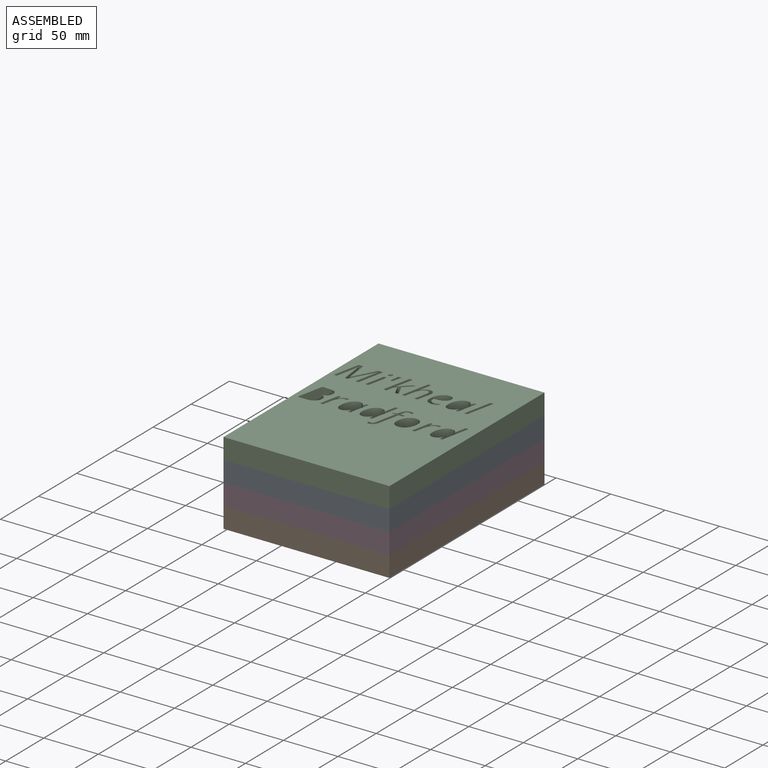
[diagram: assembled view]
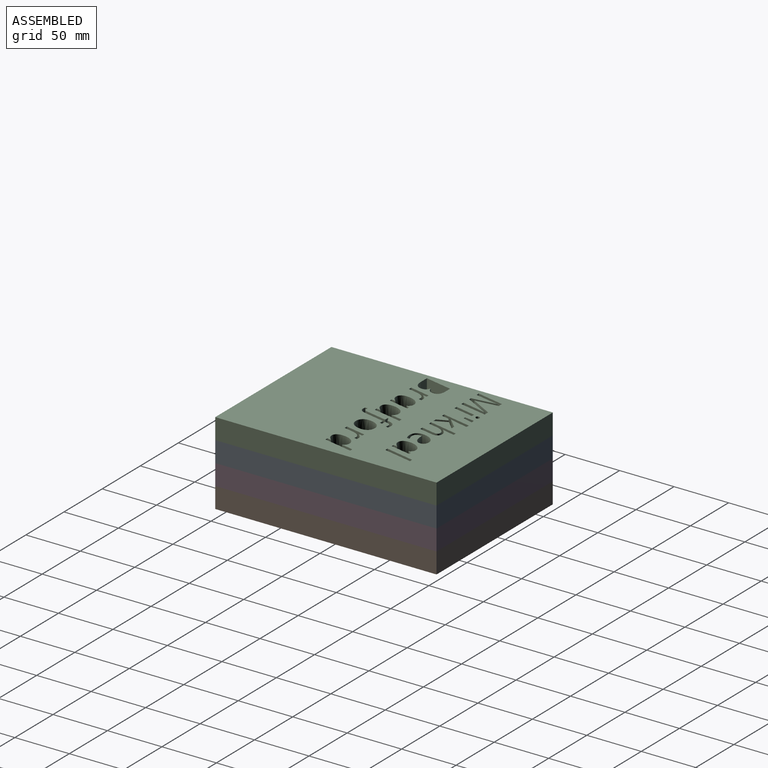
[diagram: assembled view, second angle]
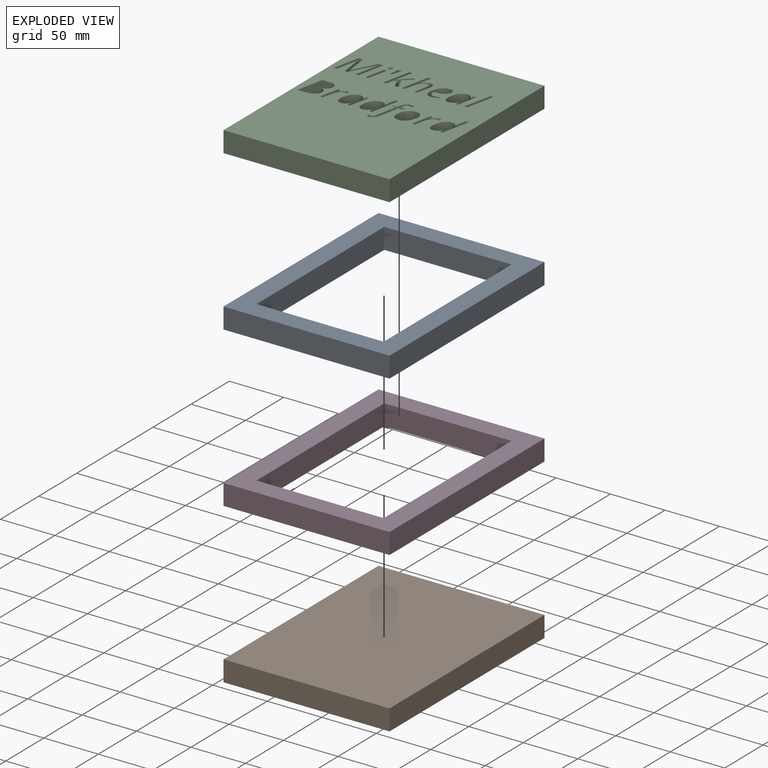
[diagram: exploded view]
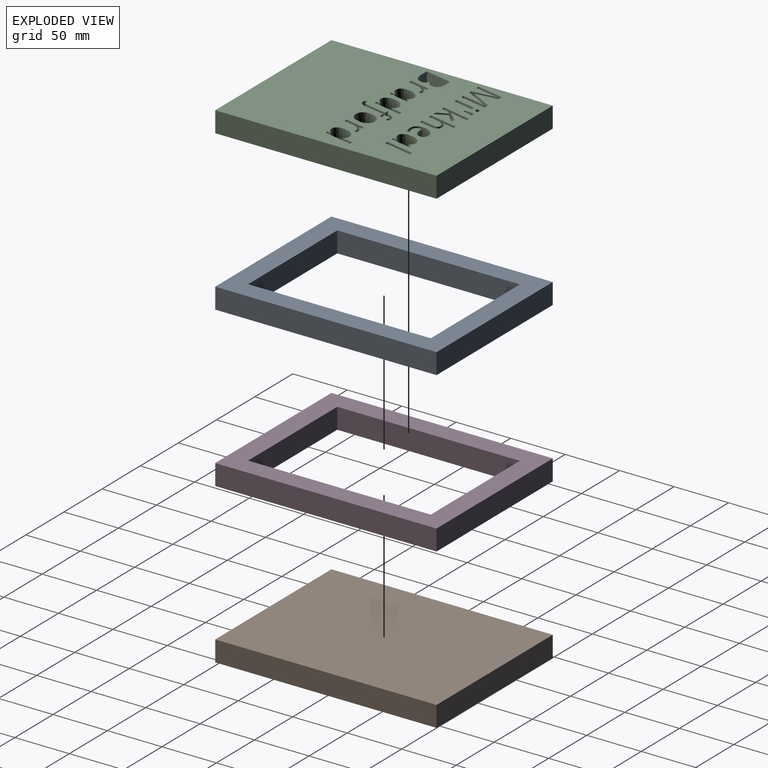
[diagram: exploded view, second angle]
ASSEMBLY  parts=4 mates=3
PART A: 10 faces, bbox 152.4x203.2x19.1 mm
  f0: plane 152.4x19.05mm, normal (0,1,0), area 2903.2mm2, adj f1,f3,f4,f5
  f1: plane 203.2x19.05mm, normal (-1,0,0), area 3871mm2, adj f0,f2,f4,f5
  f2: plane 152.4x19.05mm, normal (0,-1,0), area 2903.2mm2, adj f1,f3,f4,f5
  f3: plane 203.2x19.05mm, normal (1,0,0), area 3871mm2, adj f0,f2,f4,f5
  f4: plane 203.2x152.4mm, normal (0,0,1), area 11380.6mm2, adj f0,f1,f2,f3,f6,f7,f8,f9
  f5: plane 203.2x152.4mm, normal (0,0,-1), area 11380.6mm2, adj f0,f1,f2,f3,f6,f7,f8,f9
  f6: plane 167.64x19.05mm, normal (1,0,0), area 3193.5mm2, adj f4,f5,f7,f9
  f7: plane 116.84x19.05mm, normal (0,1,0), area 2225.8mm2, adj f4,f5,f6,f8
  f8: plane 167.64x19.05mm, normal (-1,0,0), area 3193.5mm2, adj f4,f5,f7,f9
  f9: plane 116.84x19.05mm, normal (0,-1,0), area 2225.8mm2, adj f4,f5,f6,f8
PART B: 6 faces, bbox 152.4x203.2x19.1 mm
  f0: plane 152.4x19.05mm, normal (0,1,0), area 2903.2mm2, adj f1,f3,f4,f5
  f1: plane 203.2x19.05mm, normal (-1,0,0), area 3871mm2, adj f0,f2,f4,f5
  f2: plane 152.4x19.05mm, normal (0,-1,0), area 2903.2mm2, adj f1,f3,f4,f5
  f3: plane 203.2x19.05mm, normal (1,0,0), area 3871mm2, adj f0,f2,f4,f5
  f4: plane 203.2x152.4mm, normal (0,0,1), area 30967.7mm2, adj f0,f1,f2,f3
  f5: plane 203.2x152.4mm, normal (0,0,-1), area 30967.7mm2, adj f0,f1,f2,f3
PART C: 236 faces, bbox 152.4x203.2x19.1 mm
  f0: plane 152.4x19.05mm, normal (0,1,0), area 2903.2mm2, adj f1,f233,f234,f235
  f1: plane 203.2x19.05mm, normal (-1,0,0), area 3871mm2, adj f0,f2,f234,f235
  f2: plane 152.4x19.05mm, normal (0,-1,0), area 2903.2mm2, adj f1,f233,f234,f235
  f3: extruded ~19.05x4.68mm, area 97mm2, adj f4,f216,f234,f235
  f4: extruded ~19.05x2.8mm, area 56.6mm2, adj f3,f5,f234,f235
  f5: extruded ~19.05x2.43mm, area 59.8mm2, adj f4,f6,f234,f235
  f6: plane 19.05x0.19mm, normal (0,-1,0), area 3.6mm2, adj f5,f7,f234,f235
  f7: plane 19.05x2.94mm, normal (0.93,-0.36,0), area 60mm2, adj f6,f8,f234,f235
  f8: plane 19.05x2.17mm, normal (0,-1,0), area 41.3mm2, adj f7,f9,f234,f235
  f9: plane 19.05x18.73mm, normal (-0.98,0.21,0), area 364.7mm2, adj f8,f10,f234,f235
  f10: plane 19.05x2.27mm, normal (0,1,0), area 43.3mm2, adj f9,f11,f234,f235
  f11: plane 19.05x3.57mm, normal (0.99,-0.12,0), area 68.5mm2, adj f10,f12,f234,f235
  f12: plane 19.05x0.14mm, normal (0,1,0), area 2.6mm2, adj f11,f13,f234,f235
  f13: extruded ~19.05x6.45mm, area 148.8mm2, adj f12,f14,f234,f235
  f14: extruded ~19.05x3.72mm, area 80.8mm2, adj f13,f15,f234,f235
  f15: extruded ~19.05x4.63mm, area 93.7mm2, adj f14,f16,f234,f235
  f16: extruded ~19.05x6.59mm, area 128.5mm2, adj f15,f216,f234,f235
  f17: extruded ~19.05x1.96mm, area 38.3mm2, adj f18,f217,f234,f235
  f18: extruded ~19.05x2.05mm, area 39.4mm2, adj f17,f19,f234,f235
  f19: plane 19.05x2.56mm, normal (-0.97,0.23,0), area 50.2mm2, adj f18,f20,f234,f235
  f20: extruded ~19.05x1.8mm, area 34.6mm2, adj f19,f21,f234,f235
  f21: extruded ~19.05x2.91mm, area 59.9mm2, adj f20,f22,f234,f235
  f22: extruded ~19.05x2.85mm, area 71.1mm2, adj f21,f23,f234,f235
  f23: extruded ~19.05x4.04mm, area 82.4mm2, adj f22,f24,f234,f235
  f24: plane 19.05x8.58mm, normal (-0.98,0.21,0), area 167.1mm2, adj f23,f25,f234,f235
  f25: plane 19.05x2.87mm, normal (0,1,0), area 54.7mm2, adj f24,f26,f234,f235
  f26: plane 19.05x18.73mm, normal (0.98,-0.21,0), area 364.8mm2, adj f25,f27,f234,f235
  f27: plane 19.05x2.37mm, normal (0,-1,0), area 45.2mm2, adj f26,f28,f234,f235
  f28: plane 19.05x3.47mm, normal (-0.99,0.11,0), area 66.4mm2, adj f27,f29,f234,f235
  f29: plane 19.05x0.18mm, normal (0,-1,0), area 3.3mm2, adj f28,f30,f234,f235
  f30: extruded ~19.05x2.33mm, area 59mm2, adj f29,f217,f234,f235
  f31: extruded ~19.05x4.68mm, area 97mm2, adj f32,f218,f234,f235
  f32: extruded ~19.05x2.8mm, area 56.6mm2, adj f31,f33,f234,f235
  f33: extruded ~19.05x2.43mm, area 59.8mm2, adj f32,f34,f234,f235
  f34: plane 19.05x0.19mm, normal (0,-1,0), area 3.6mm2, adj f33,f35,f234,f235
  f35: plane 19.05x2.94mm, normal (0.93,-0.36,0), area 60mm2, adj f34,f36,f234,f235
  f36: plane 19.05x2.17mm, normal (0,-1,0), area 41.3mm2, adj f35,f37,f234,f235
  f37: plane 19.05x18.73mm, normal (-0.98,0.21,0), area 364.7mm2, adj f36,f38,f234,f235
  f38: plane 19.05x2.27mm, normal (0,1,0), area 43.3mm2, adj f37,f39,f234,f235
  f39: plane 19.05x3.57mm, normal (0.99,-0.12,0), area 68.5mm2, adj f38,f40,f234,f235
  f40: plane 19.05x0.14mm, normal (0,1,0), area 2.6mm2, adj f39,f41,f234,f235
  f41: extruded ~19.05x6.45mm, area 148.8mm2, adj f40,f42,f234,f235
  f42: extruded ~19.05x3.72mm, area 80.8mm2, adj f41,f43,f234,f235
  f43: extruded ~19.05x4.63mm, area 93.7mm2, adj f42,f44,f234,f235
  f44: extruded ~19.05x6.59mm, area 128.5mm2, adj f43,f218,f234,f235
  f45: extruded ~19.05x3.64mm, area 77.2mm2, adj f46,f219,f234,f235
  f46: extruded ~19.05x2.14mm, area 41.5mm2, adj f45,f47,f234,f235
  f47: plane 19.05x2.41mm, normal (1,0,0), area 45.9mm2, adj f46,f48,f234,f235
  f48: extruded ~19.05x1.91mm, area 37.3mm2, adj f47,f49,f234,f235
  f49: extruded ~19.05x2mm, area 45.1mm2, adj f48,f50,f234,f235
  f50: extruded ~19.05x3.03mm, area 61.8mm2, adj f49,f51,f234,f235
  f51: plane 19.05x18.49mm, normal (0.98,-0.21,0), area 359.8mm2, adj f50,f52,f234,f235
  f52: plane 19.05x3.3mm, normal (0,1,0), area 62.8mm2, adj f51,f53,f234,f235
  f53: plane 19.05x1.15mm, normal (0.98,-0.19,0), area 22.3mm2, adj f52,f54,f234,f235
  f54: plane 19.05x3.52mm, normal (0.3,-0.95,0), area 70.4mm2, adj f53,f55,f234,f235
  f55: plane 19.05x1.71mm, normal (0.97,-0.22,0), area 33.4mm2, adj f54,f56,f234,f235
  f56: extruded ~19.05x4.83mm, area 102.1mm2, adj f55,f57,f234,f235
  f57: extruded ~19.05x4.13mm, area 85.3mm2, adj f56,f58,f234,f235
  f58: extruded ~19.05x1.67mm, area 32.1mm2, adj f57,f59,f234,f235
  f59: extruded ~19.05x1.54mm, area 30.5mm2, adj f58,f60,f234,f235
  f60: plane 19.05x2.2mm, normal (-0.95,0.32,0), area 44.2mm2, adj f59,f61,f234,f235
  f61: extruded ~19.05x2.34mm, area 45.8mm2, adj f60,f62,f234,f235
  f62: extruded ~19.05x2.28mm, area 47.6mm2, adj f61,f63,f234,f235
  f63: extruded ~19.05x3.03mm, area 63.4mm2, adj f62,f64,f234,f235
  f64: plane 19.05x1.85mm, normal (-0.97,0.22,0), area 36.1mm2, adj f63,f65,f234,f235
  f65: plane 19.05x4.06mm, normal (0,-1,0), area 77.4mm2, adj f64,f66,f234,f235
  f66: plane 19.05x2.17mm, normal (-0.98,0.19,0), area 42.1mm2, adj f65,f67,f234,f235
  f67: plane 19.05x4.05mm, normal (0,1,0), area 77.1mm2, adj f66,f68,f234,f235
  f68: plane 19.05x18.76mm, normal (-0.98,0.21,0), area 365.2mm2, adj f67,f219,f234,f235
  f69: extruded ~19.05x4.69mm, area 95.7mm2, adj f70,f220,f234,f235
  f70: extruded ~19.05x5.13mm, area 107.3mm2, adj f69,f71,f234,f235
  f71: extruded ~19.05x5.29mm, area 109.8mm2, adj f70,f72,f234,f235
  f72: extruded ~19.05x6.06mm, area 118.7mm2, adj f71,f73,f234,f235
  f73: extruded ~19.05x4.41mm, area 106.5mm2, adj f72,f74,f234,f235
  f74: extruded ~19.05x4.75mm, area 96.9mm2, adj f73,f75,f234,f235
  f75: extruded ~19.05x5.15mm, area 107.7mm2, adj f74,f76,f234,f235
  f76: extruded ~19.05x5.28mm, area 109.5mm2, adj f75,f77,f234,f235
  f77: extruded ~19.05x6.11mm, area 119.6mm2, adj f76,f220,f234,f235
  f78: extruded ~19.05x4.69mm, area 96.6mm2, adj f79,f221,f234,f235
  f79: extruded ~19.05x4.8mm, area 117.5mm2, adj f78,f80,f234,f235
  f80: plane 19.05x0.17mm, normal (0,-1,0), area 3.2mm2, adj f79,f81,f234,f235
  f81: extruded ~19.05x4.68mm, area 90.4mm2, adj f80,f82,f234,f235
  f82: plane 19.05x6.12mm, normal (0.98,-0.21,0), area 119.3mm2, adj f81,f83,f234,f235
  f83: plane 19.05x2.83mm, normal (0,-1,0), area 54mm2, adj f82,f84,f234,f235
  f84: plane 26.59x19.05mm, normal (-0.98,0.21,0), area 517.8mm2, adj f83,f85,f234,f235
  f85: plane 19.05x2.37mm, normal (0,1,0), area 45.2mm2, adj f84,f86,f234,f235
  f86: plane 19.05x3.57mm, normal (0.99,-0.11,0), area 68.4mm2, adj f85,f87,f234,f235
  f87: plane 19.05x0.14mm, normal (0,1,0), area 2.6mm2, adj f86,f88,f234,f235
  f88: extruded ~19.05x3.23mm, area 84.7mm2, adj f87,f89,f234,f235
  f89: extruded ~19.05x3.11mm, area 62.4mm2, adj f88,f90,f234,f235
  f90: extruded ~19.05x3.71mm, area 80.4mm2, adj f89,f91,f234,f235
  f91: extruded ~19.05x4.65mm, area 93.9mm2, adj f90,f92,f234,f235
  f92: extruded ~19.05x6.7mm, area 130.5mm2, adj f91,f221,f234,f235
  f93: extruded ~19.05x1.96mm, area 38.3mm2, adj f94,f222,f234,f235
  f94: extruded ~19.05x2.05mm, area 39.4mm2, adj f93,f95,f234,f235
  f95: plane 19.05x2.56mm, normal (-0.97,0.23,0), area 50.2mm2, adj f94,f96,f234,f235
  f96: extruded ~19.05x1.8mm, area 34.6mm2, adj f95,f97,f234,f235
  f97: extruded ~19.05x2.91mm, area 59.9mm2, adj f96,f98,f234,f235
  f98: extruded ~19.05x2.85mm, area 71.1mm2, adj f97,f99,f234,f235
  f99: extruded ~19.05x4.04mm, area 82.4mm2, adj f98,f100,f234,f235
  f100: plane 19.05x8.58mm, normal (-0.98,0.21,0), area 167.1mm2, adj f99,f101,f234,f235
  f101: plane 19.05x2.87mm, normal (0,1,0), area 54.7mm2, adj f100,f102,f234,f235
  f102: plane 19.05x18.73mm, normal (0.98,-0.21,0), area 364.8mm2, adj f101,f103,f234,f235
  f103: plane 19.05x2.37mm, normal (0,-1,0), area 45.2mm2, adj f102,f104,f234,f235
  f104: plane 19.05x3.47mm, normal (-0.99,0.11,0), area 66.4mm2, adj f103,f105,f234,f235
  f105: plane 19.05x0.18mm, normal (0,-1,0), area 3.3mm2, adj f104,f106,f234,f235
  f106: extruded ~19.05x2.33mm, area 59mm2, adj f105,f222,f234,f235
  f107: extruded ~19.05x4.69mm, area 96.6mm2, adj f108,f223,f234,f235
  f108: extruded ~19.05x4.8mm, area 117.5mm2, adj f107,f109,f234,f235
  f109: plane 19.05x0.17mm, normal (0,-1,0), area 3.2mm2, adj f108,f110,f234,f235
  f110: extruded ~19.05x4.68mm, area 90.4mm2, adj f109,f111,f234,f235
  f111: plane 19.05x6.12mm, normal (0.98,-0.21,0), area 119.3mm2, adj f110,f112,f234,f235
  f112: plane 19.05x2.83mm, normal (0,-1,0), area 54mm2, adj f111,f113,f234,f235
  f113: plane 26.59x19.05mm, normal (-0.98,0.21,0), area 517.8mm2, adj f112,f114,f234,f235
  f114: plane 19.05x2.37mm, normal (0,1,0), area 45.2mm2, adj f113,f115,f234,f235
  f115: plane 19.05x3.57mm, normal (0.99,-0.11,0), area 68.4mm2, adj f114,f116,f234,f235
  f116: plane 19.05x0.14mm, normal (0,1,0), area 2.6mm2, adj f115,f117,f234,f235
  f117: extruded ~19.05x3.23mm, area 84.7mm2, adj f116,f118,f234,f235
  f118: extruded ~19.05x3.11mm, area 62.4mm2, adj f117,f119,f234,f235
  f119: extruded ~19.05x3.71mm, area 80.4mm2, adj f118,f120,f234,f235
  f120: extruded ~19.05x4.65mm, area 93.9mm2, adj f119,f121,f234,f235
  f121: extruded ~19.05x6.7mm, area 130.5mm2, adj f120,f223,f234,f235
  f122: plane 19.05x6.41mm, normal (0,-1,0), area 122.1mm2, adj f123,f224,f234,f235
  f123: extruded ~19.05x7.38mm, area 203.5mm2, adj f122,f124,f234,f235
  f124: extruded ~19.05x4.07mm, area 84.5mm2, adj f123,f125,f234,f235
  f125: extruded ~19.05x4.19mm, area 91.4mm2, adj f124,f126,f234,f235
  f126: plane 19.05x0.17mm, normal (-1,0,0), area 3.2mm2, adj f125,f127,f234,f235
  f127: extruded ~19.05x3.02mm, area 69mm2, adj f126,f128,f234,f235
  f128: extruded ~19.05x3.22mm, area 65.7mm2, adj f127,f129,f234,f235
  f129: extruded ~19.05x5.68mm, area 123.5mm2, adj f128,f130,f234,f235
  f130: extruded ~19.05x6.95mm, area 140.8mm2, adj f129,f131,f234,f235
  f131: plane 19.05x7.91mm, normal (0,1,0), area 150.7mm2, adj f130,f224,f234,f235
  f132: plane 26.59x19.05mm, normal (-0.98,0.21,0), area 517.9mm2, adj f133,f225,f234,f235
  f133: plane 19.05x2.87mm, normal (0,1,0), area 54.7mm2, adj f132,f134,f234,f235
  f134: plane 26.59x19.05mm, normal (0.98,-0.21,0), area 517.9mm2, adj f133,f225,f234,f235
  f135: extruded ~19.05x2.71mm, area 52.1mm2, adj f136,f226,f234,f235
  f136: extruded ~19.05x4.94mm, area 103.5mm2, adj f135,f137,f234,f235
  f137: extruded ~19.05x5.16mm, area 106.8mm2, adj f136,f138,f234,f235
  f138: extruded ~19.05x6.16mm, area 120.7mm2, adj f137,f139,f234,f235
  f139: extruded ~19.05x4.59mm, area 109.7mm2, adj f138,f140,f234,f235
  f140: extruded ~19.05x4.63mm, area 95.4mm2, adj f139,f141,f234,f235
  f141: extruded ~19.05x3.93mm, area 79.6mm2, adj f140,f142,f234,f235
  f142: extruded ~19.05x3.17mm, area 67.6mm2, adj f141,f143,f234,f235
  f143: extruded ~19.05x4.83mm, area 111.9mm2, adj f142,f144,f234,f235
  f144: extruded ~19.05x8.12mm, area 160.2mm2, adj f143,f145,f234,f235
  f145: plane 19.05x0.56mm, normal (0,1,0), area 10.7mm2, adj f144,f146,f234,f235
  f146: plane 19.05x1.37mm, normal (-1,0.05,0), area 26.1mm2, adj f145,f147,f234,f235
  f147: extruded ~19.05x3.49mm, area 70.9mm2, adj f146,f148,f234,f235
  f148: extruded ~19.05x3.25mm, area 68.7mm2, adj f147,f149,f234,f235
  f149: extruded ~19.05x2.21mm, area 42.7mm2, adj f148,f150,f234,f235
  f150: extruded ~19.05x2.83mm, area 58.1mm2, adj f149,f151,f234,f235
  f151: plane 19.05x2.5mm, normal (-1,0,0), area 47.6mm2, adj f150,f226,f234,f235
  f152: plane 19.05x2.87mm, normal (0,1,0), area 54.7mm2, adj f153,f227,f234,f235
  f153: plane 19.05x11.83mm, normal (0.98,-0.21,0), area 230.4mm2, adj f152,f154,f234,f235
  f154: extruded ~19.05x2.3mm, area 44.3mm2, adj f153,f155,f234,f235
  f155: extruded ~19.05x2.53mm, area 77.9mm2, adj f154,f156,f234,f235
  f156: extruded ~19.05x2.97mm, area 60.7mm2, adj f155,f157,f234,f235
  f157: extruded ~19.05x2.93mm, area 74.5mm2, adj f156,f158,f234,f235
  f158: extruded ~19.05x4.64mm, area 94.3mm2, adj f157,f159,f234,f235
  f159: plane 19.05x8.08mm, normal (-0.98,0.21,0), area 157.4mm2, adj f158,f160,f234,f235
  f160: plane 19.05x2.87mm, normal (0,1,0), area 54.7mm2, adj f159,f161,f234,f235
  f161: plane 26.59x19.05mm, normal (0.98,-0.21,0), area 517.8mm2, adj f160,f162,f234,f235
  f162: plane 19.05x2.87mm, normal (0,-1,0), area 54.7mm2, adj f161,f163,f234,f235
  f163: extruded ~19.05x2.72mm, area 53mm2, adj f162,f164,f234,f235
  f164: extruded ~19.05x2.67mm, area 52.1mm2, adj f163,f165,f234,f235
  f165: extruded ~19.05x2.85mm, area 55.6mm2, adj f164,f166,f234,f235
  f166: extruded ~19.05x3.23mm, area 63.4mm2, adj f165,f167,f234,f235
  f167: plane 19.05x0.19mm, normal (0,-1,0), area 3.6mm2, adj f166,f168,f234,f235
  f168: extruded ~19.05x3.17mm, area 83.7mm2, adj f167,f169,f234,f235
  f169: extruded ~19.05x3.27mm, area 65.4mm2, adj f168,f170,f234,f235
  f170: extruded ~19.05x3.46mm, area 71.8mm2, adj f169,f171,f234,f235
  f171: extruded ~19.05x3.48mm, area 72.2mm2, adj f170,f172,f234,f235
  f172: extruded ~19.05x2.84mm, area 54.7mm2, adj f171,f227,f234,f235
  f173: plane 19.05x0.07mm, normal (0,-1,0), area 1.2mm2, adj f174,f228,f234,f235
  f174: plane 19.05x9.17mm, normal (0.71,-0.7,0), area 244.7mm2, adj f173,f175,f234,f235
  f175: plane 19.05x3.43mm, normal (0,-1,0), area 65.4mm2, adj f174,f176,f234,f235
  f176: plane 19.05x8.01mm, normal (-0.71,0.71,0), area 215.3mm2, adj f175,f177,f234,f235
  f177: plane 19.05x10.75mm, normal (-0.91,-0.42,0), area 226.1mm2, adj f176,f178,f234,f235
  f178: plane 19.05x3.19mm, normal (0,1,0), area 60.8mm2, adj f177,f179,f234,f235
  f179: plane 19.05x8.96mm, normal (0.91,0.41,0), area 187mm2, adj f178,f180,f234,f235
  f180: plane 19.05x2.6mm, normal (-0.63,0.78,0), area 63.7mm2, adj f179,f181,f234,f235
  f181: plane 19.05x6.85mm, normal (-0.98,0.2,0), area 133.2mm2, adj f180,f182,f234,f235
  f182: plane 19.05x2.9mm, normal (0,1,0), area 55.3mm2, adj f181,f183,f234,f235
  f183: plane 26.59x19.05mm, normal (0.98,-0.21,0), area 517.8mm2, adj f182,f184,f234,f235
  f184: plane 19.05x2.91mm, normal (0,-1,0), area 55.4mm2, adj f183,f185,f234,f235
  f185: extruded ~19.05x10.29mm, area 200.4mm2, adj f184,f228,f234,f235
  f186: plane 19.05x3.22mm, normal (0,-1,0), area 61.2mm2, adj f187,f229,f234,f235
  f187: plane 19.05x9.02mm, normal (-0.96,0.28,0), area 178.9mm2, adj f186,f188,f234,f235
  f188: plane 19.05x1.83mm, normal (0,1,0), area 34.9mm2, adj f187,f229,f234,f235
  f189: extruded ~19.05x1.19mm, area 24.9mm2, adj f190,f230,f234,f235
  f190: extruded ~19.05x1.56mm, area 32.3mm2, adj f189,f191,f234,f235
  f191: extruded ~19.05x1.42mm, area 30.3mm2, adj f190,f192,f234,f235
  f192: extruded ~19.05x1.54mm, area 47mm2, adj f191,f193,f234,f235
  f193: extruded ~19.05x1.59mm, area 32.9mm2, adj f192,f194,f234,f235
  f194: extruded ~19.05x1.33mm, area 29.1mm2, adj f193,f230,f234,f235
  f195: plane 19.05x18.73mm, normal (-0.98,0.21,0), area 364.8mm2, adj f196,f231,f234,f235
  f196: plane 19.05x2.87mm, normal (0,1,0), area 54.7mm2, adj f195,f197,f234,f235
  f197: plane 19.05x18.73mm, normal (0.98,-0.21,0), area 364.8mm2, adj f196,f231,f234,f235
  f198: plane 19.05x2.24mm, normal (0,1,0), area 42.6mm2, adj f199,f232,f234,f235
  f199: plane 22.14x19.05mm, normal (0.99,0.13,0), area 425.3mm2, adj f198,f200,f234,f235
  f200: plane 19.05x0.14mm, normal (0,1,0), area 2.6mm2, adj f199,f201,f234,f235
  f201: extruded ~19.05x3.37mm, area 64.9mm2, adj f200,f202,f234,f235
  f202: extruded ~19.05x3.41mm, area 66.1mm2, adj f201,f203,f234,f235
  f203: plane 19.05x15.36mm, normal (-0.98,0.21,0), area 299mm2, adj f202,f204,f234,f235
  f204: plane 19.05x2.77mm, normal (0,1,0), area 52.7mm2, adj f203,f205,f234,f235
  f205: plane 24.98x19.05mm, normal (0.98,-0.21,0), area 486.4mm2, adj f204,f206,f234,f235
  f206: plane 19.05x4.17mm, normal (0,-1,0), area 79.5mm2, adj f205,f207,f234,f235
  f207: plane 20.57x19.05mm, normal (-0.99,-0.12,0), area 394.9mm2, adj f206,f208,f234,f235
  f208: plane 19.05x0.15mm, normal (0,-1,0), area 2.9mm2, adj f207,f209,f234,f235
  f209: plane 20.57x19.05mm, normal (0.88,-0.48,0), area 446.8mm2, adj f208,f210,f234,f235
  f210: plane 19.05x4.54mm, normal (0,-1,0), area 86.6mm2, adj f209,f211,f234,f235
  f211: plane 24.98x19.05mm, normal (-0.98,0.2,0), area 486mm2, adj f210,f212,f234,f235
  f212: plane 19.05x2.97mm, normal (0,1,0), area 56.7mm2, adj f211,f213,f234,f235
  f213: extruded ~19.05x15.47mm, area 301.4mm2, adj f212,f214,f234,f235
  f214: extruded ~19.05x6.7mm, area 131.3mm2, adj f213,f215,f234,f235
  f215: plane 19.05x0.1mm, normal (0,1,0), area 1.9mm2, adj f214,f232,f234,f235
  f216: extruded ~19.05x4.77mm, area 112.2mm2, adj f3,f16,f234,f235
  f217: extruded ~19.05x1.68mm, area 38.4mm2, adj f17,f30,f234,f235
  f218: extruded ~19.05x4.77mm, area 112.2mm2, adj f31,f44,f234,f235
  f219: extruded ~19.05x4.72mm, area 99.2mm2, adj f45,f68,f234,f235
  f220: extruded ~19.05x4.39mm, area 106.7mm2, adj f69,f77,f234,f235
  f221: extruded ~19.05x4.7mm, area 110.9mm2, adj f78,f92,f234,f235
  f222: extruded ~19.05x1.68mm, area 38.4mm2, adj f93,f106,f234,f235
  f223: extruded ~19.05x4.7mm, area 110.9mm2, adj f107,f121,f234,f235
  f224: plane 24.98x19.05mm, normal (0.98,-0.21,0), area 486.4mm2, adj f122,f131,f234,f235
  f225: plane 19.05x2.87mm, normal (0,-1,0), area 54.7mm2, adj f132,f134,f234,f235
  f226: extruded ~19.05x2.84mm, area 57.7mm2, adj f135,f151,f234,f235
  f227: extruded ~19.05x11.48mm, area 223.8mm2, adj f152,f172,f234,f235
  f228: extruded ~19.05x6.75mm, area 132.9mm2, adj f173,f185,f234,f235
  f229: plane 19.05x9.02mm, normal (0.99,-0.14,0), area 173.4mm2, adj f186,f188,f234,f235
  f230: extruded ~19.05x1.13mm, area 23.5mm2, adj f189,f194,f234,f235
  f231: plane 19.05x2.87mm, normal (0,-1,0), area 54.7mm2, adj f195,f197,f234,f235
  f232: plane 22.18x19.05mm, normal (-0.88,0.48,0), area 482.6mm2, adj f198,f215,f234,f235
  f233: plane 203.2x19.05mm, normal (1,0,0), area 3871mm2, adj f0,f2,f234,f235
  f234: plane 203.2x152.4mm, normal (0,0,1), area 28155.4mm2, adj f0,f1,f2,f3,f4,f5,f6,f7
  f235: plane 203.2x152.4mm, normal (0,0,-1), area 28155.4mm2, adj f0,f1,f2,f3,f4,f5,f6,f7
PART D: same geometry as A
PLACE A rot(axis=(0,-1,0),180deg) t=(114.43,52.66,-7.78)mm
PLACE B rot(axis=(0,-1,0),180deg) t=(114.43,52.66,-45.88)mm
PLACE C t=(155.36,52.66,-7.78)mm
PLACE D rot(axis=(0,-1,0),180deg) t=(114.43,52.66,-26.83)mm
MATE fastened B.f5 <-> D.f4  axis (0,0,1) through (211.09,-48.33,-45.88)mm
MATE fastened A.f4 <-> D.f5  axis (0,0,-1) through (134.89,53.27,-26.83)mm
MATE fastened C.f235 <-> A.f5  axis (0,0,-1) through (211.09,-48.33,-7.78)mm
